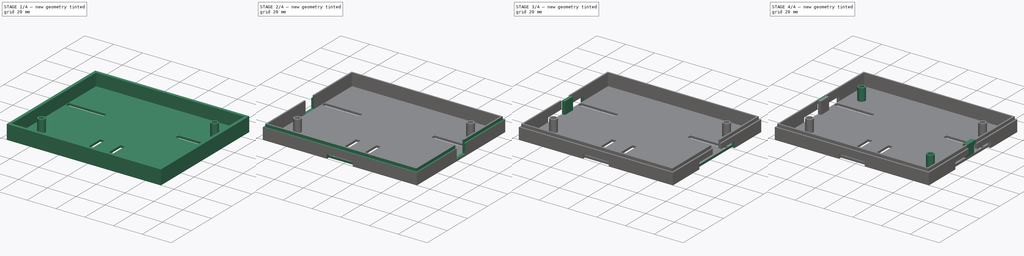
[diagram: build sequence overview — one tinted view per stage of 4, left to right]
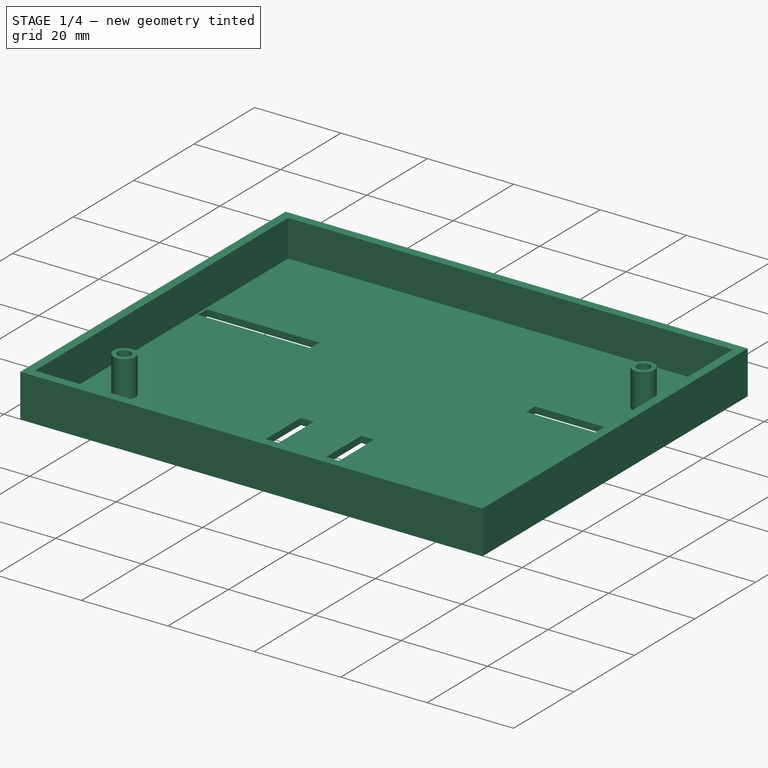
[diagram: stage 1 of 4 — iso view after this stage's code; geometry added in this stage tinted green]
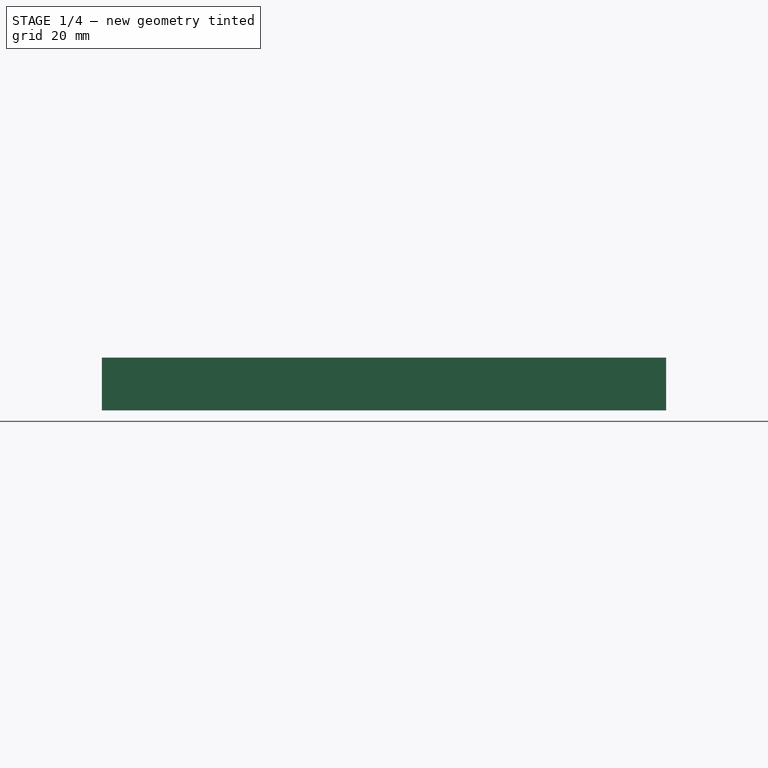
[diagram: stage 1 of 4 — front view after this stage's code; geometry added in this stage tinted green]
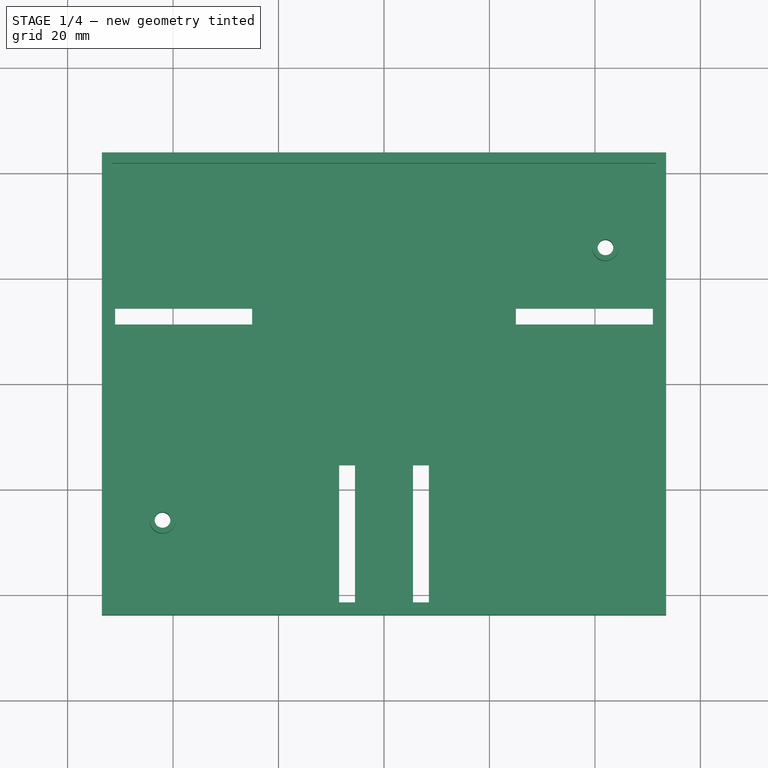
[diagram: stage 1 of 4 — top view after this stage's code; geometry added in this stage tinted green]
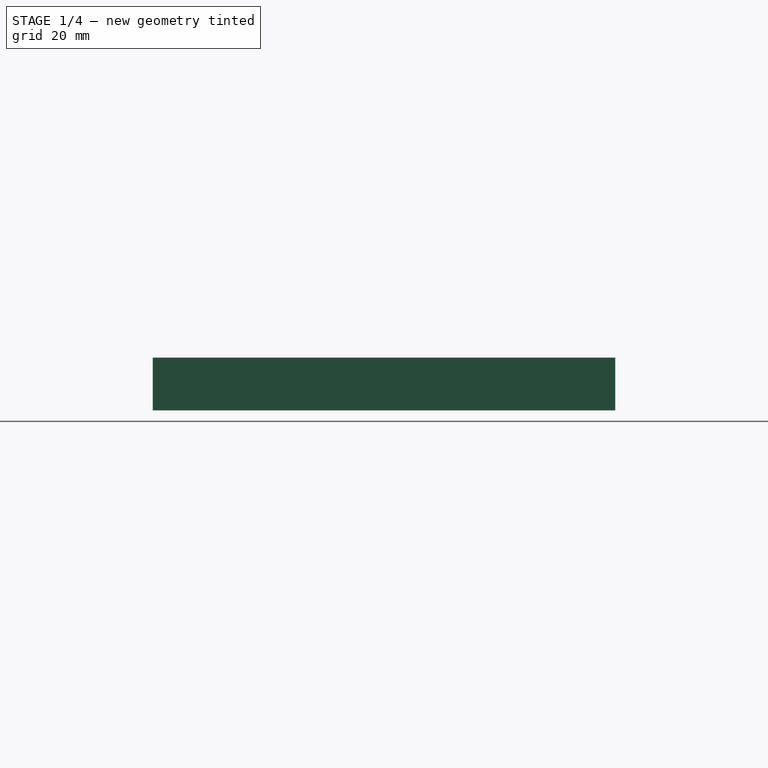
[diagram: stage 1 of 4 — right view after this stage's code; geometry added in this stage tinted green]
FCSTD DOCUMENT  (FreeCAD 1.0R39319 (Git))
Label: segunda parte
License: All rights reserved
LicenseURL: https://en.wikipedia.org/wiki/All_rights_reserved
objects: Sketcher::SketchObject×9, PartDesign::Pocket×6, PartDesign::Pad×3, PartDesign::Mirrored×1, PartDesign::Body×1
note: 48 computed .brp shape members not serialized (recipe doc carries the construction recipe); baked Part::Feature solids carry a one-line shape summary decoded from their .brp

FEATURE [Sketcher::SketchObject] Sketch
  ArcFitTolerance = 1e-06
  AttachmentSupport = -> [XY_Plane]
  FullyConstrained = false
  MakeInternals = false
  MapMode = 5
  sketch-geometry (23):
    g0: LineSegment StartX=-53.5 StartY=-43.85 StartZ=0 EndX=53.5 EndY=-43.85 EndZ=0
    g1: LineSegment StartX=53.5 StartY=-43.85 StartZ=0 EndX=53.5 EndY=43.85 EndZ=0
    g2: LineSegment StartX=53.5 StartY=43.85 StartZ=0 EndX=-53.5 EndY=43.85 EndZ=0
    g3: LineSegment StartX=-53.5 StartY=43.85 StartZ=0 EndX=-53.5 EndY=-43.85 EndZ=0
    g4: Circle CenterX=-42 CenterY=-25.85 CenterZ=0 NormalX=0 NormalY=0 NormalZ=1 AngleXU=0 Radius=1.5
    g5: Circle CenterX=42 CenterY=25.85 CenterZ=0 NormalX=0 NormalY=0 NormalZ=1 AngleXU=0 Radius=1.5
    g6: LineSegment [constr] StartX=2.9e-15 StartY=-43.85 StartZ=0 EndX=2.9e-15 EndY=-14.8013 EndZ=0
    g7: LineSegment StartX=-8.5 StartY=-15.35 StartZ=0 EndX=-8.5 EndY=-41.35 EndZ=0
    g8: LineSegment StartX=-8.5 StartY=-41.35 StartZ=0 EndX=-5.5 EndY=-41.35 EndZ=0
    g9: LineSegment StartX=-5.5 StartY=-41.35 StartZ=0 EndX=-5.5 EndY=-15.35 EndZ=0
    g10: LineSegment StartX=-5.5 StartY=-15.35 StartZ=0 EndX=-8.5 EndY=-15.35 EndZ=0
    g11: LineSegment StartX=5.5 StartY=-15.35 StartZ=0 EndX=5.5 EndY=-41.35 EndZ=0
    g12: LineSegment StartX=5.5 StartY=-41.35 StartZ=0 EndX=8.5 EndY=-41.35 EndZ=0
    g13: LineSegment StartX=8.5 StartY=-41.35 StartZ=0 EndX=8.5 EndY=-15.35 EndZ=0
    g14: LineSegment StartX=8.5 StartY=-15.35 StartZ=0 EndX=5.5 EndY=-15.35 EndZ=0
    g15: LineSegment StartX=51 StartY=14.35 StartZ=0 EndX=25 EndY=14.35 EndZ=0
    g16: LineSegment StartX=25 StartY=14.35 StartZ=0 EndX=25 EndY=11.35 EndZ=0
    g17: LineSegment StartX=25 StartY=11.35 StartZ=0 EndX=51 EndY=11.35 EndZ=0
    g18: LineSegment StartX=51 StartY=11.35 StartZ=0 EndX=51 EndY=14.35 EndZ=0
    g19: LineSegment StartX=-25 StartY=14.35 StartZ=0 EndX=-51 EndY=14.35 EndZ=0
    g20: LineSegment StartX=-51 StartY=14.35 StartZ=0 EndX=-51 EndY=11.35 EndZ=0
    g21: LineSegment StartX=-51 StartY=11.35 StartZ=0 EndX=-25 EndY=11.35 EndZ=0
    g22: LineSegment StartX=-25 StartY=11.35 StartZ=0 EndX=-25 EndY=14.35 EndZ=0
  constraints (66):
    c: Coincident(g0,g1)
    c: Coincident(g1,g2)
    c: Coincident(g2,g3)
    c: Coincident(g3,g0)
    c: Horizontal(g0)
    c: Horizontal(g2)
    c: Vertical(g1)
    c: Vertical(g3)
    c: DistanceX(g2,g2) = 107
    c: DistanceY(g3,g3) = 87.7
    c: Diameter(g4) = 3
    c: DistanceX(g0,g4) = 11.5
    c: DistanceY(g0,g4) = 18
    c: DistanceX(g5,g1) = 11.5
    c: DistanceY(g5,g1) = 18
    c: Diameter(g5) = 3
    c: Symmetric(g0,g0,g6)
    c: Vertical(g6)
    c: Coincident(g7,g8)
    c: Coincident(g8,g9)
    c: Coincident(g9,g10)
    c: Coincident(g10,g7)
    c: Vertical(g7)
    c: Vertical(g9)
    c: Horizontal(g8)
    c: Horizontal(g10)
    c: Coincident(g11,g12)
    c: Coincident(g12,g13)
    c: Coincident(g13,g14)
    c: Coincident(g14,g11)
    c: Vertical(g11)
    c: Vertical(g13)
    c: Horizontal(g12)
    c: Horizontal(g14)
    c: DistanceX(g10,g10) = 3
    c: DistanceX(g14,g14) = 3
    c: DistanceY(g13,g13) = 26
    c: DistanceY(g9,g9) = 26
    c: DistanceY(g0,g8) = 2.5
    c: DistanceY(g0,g12) = 2.5
    c: DistanceX(g12,g0) = 45
    c: DistanceX(g0,g7) = 45
    c: Coincident(g15,g16)
    c: Coincident(g16,g17)
    c: Coincident(g17,g18)
    c: Coincident(g18,g15)
    c: Horizontal(g15)
    c: Horizontal(g17)
    c: Vertical(g16)
    c: Vertical(g18)
    c: Coincident(g19,g20)
    c: Coincident(g20,g21)
    c: Coincident(g21,g22)
    c: Coincident(g22,g19)
    c: Horizontal(g19)
    c: Horizontal(g21)
    c: Vertical(g20)
    c: Vertical(g22)
    c: DistanceY(g18,g18) = 3
    c: DistanceY(g22,g22) = 3
    c: DistanceX(g17,g17) = 26
    c: DistanceX(g21,g21) = 26
    c: DistanceY(g15,g5) = 11.5
    c: DistanceY(g19,g5) = 11.5
    c: DistanceX(g15,g1) = 2.5
    c: DistanceX(g2,g19) = 2.5
FEATURE [PartDesign::Pad] Pad
  Direction = (0,0,1)
  Length = 10
  Length2 = 10
  Profile = -> Sketch
  ReferenceAxis = -> Sketch [N_Axis]
  Refine = true
  Suppressed = false
  Type = 0
FEATURE [Sketcher::SketchObject] Sketch001
  ArcFitTolerance = 1e-06
  AttachmentSupport = -> [Pad]
  FullyConstrained = true
  MakeInternals = false
  MapMode = 5
  Placement = pos=(0,0,10) rot=(0,0,1;0rad)
  sketch-geometry (6):
    g0: LineSegment StartX=-51.5 StartY=41.85 StartZ=0 EndX=-51.5 EndY=-41.85 EndZ=0
    g1: LineSegment StartX=-51.5 StartY=-41.85 StartZ=0 EndX=51.5 EndY=-41.85 EndZ=0
    g2: LineSegment StartX=51.5 StartY=-41.85 StartZ=0 EndX=51.5 EndY=41.85 EndZ=0
    g3: LineSegment StartX=51.5 StartY=41.85 StartZ=0 EndX=-51.5 EndY=41.85 EndZ=0
    g4: Circle CenterX=-42 CenterY=-25.85 CenterZ=0 NormalX=0 NormalY=0 NormalZ=1 AngleXU=0 Radius=2.5
    g5: Circle CenterX=42 CenterY=25.85 CenterZ=0 NormalX=0 NormalY=0 NormalZ=1 AngleXU=0 Radius=2.5
  constraints (18):
    c: Coincident(g0,g1)
    c: Coincident(g1,g2)
    c: Coincident(g2,g3)
    c: Coincident(g3,g0)
    c: Vertical(g0)
    c: Vertical(g2)
    c: Horizontal(g1)
    c: Horizontal(g3)
    c: DistanceX(g1,g1) = 103
    c: DistanceY(g0,g0) = 83.7
    c: DistanceY(g-1,g0) = 41.85
    c: DistanceX(g0,g-1) = 51.5
    c: Diameter(g4) = 5
    c: Diameter(g5) = 5
    c: DistanceX(g0,g4) = 9.5
    c: DistanceX(g5,g2) = 9.5
    c: DistanceY(g5,g2) = 16
    c: DistanceY(g0,g4) = 16
FEATURE [PartDesign::Pocket] Pocket
  BaseFeature = -> Pad
  Direction = (0,0,-1)
  Length = 8.5
  Length2 = 5
  Profile = -> Sketch001
  ReferenceAxis = -> Sketch001 [N_Axis]
  Refine = true
  Suppressed = false
  Type = 0
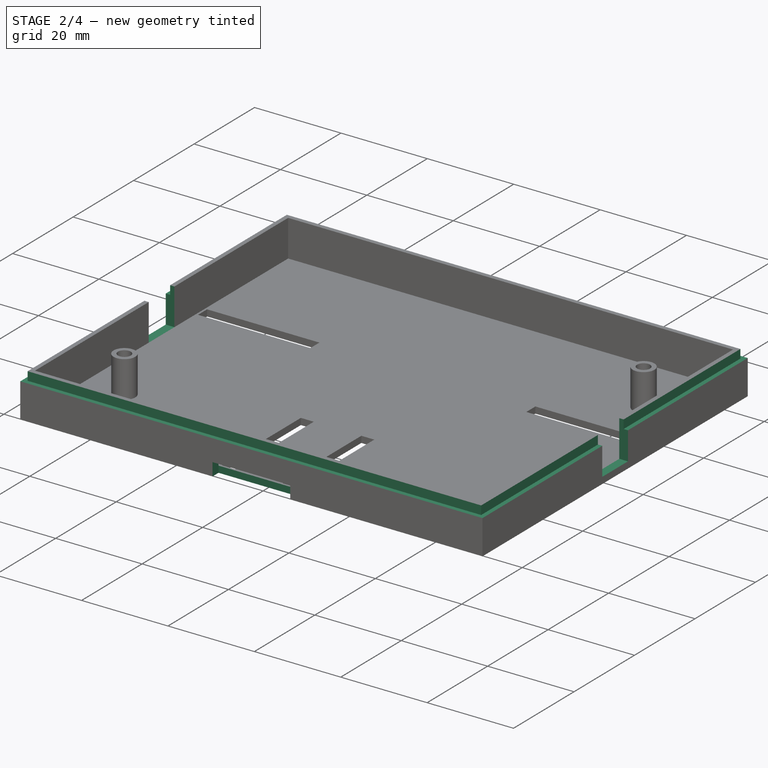
[diagram: stage 2 of 4 — iso view after this stage's code; geometry added in this stage tinted green]
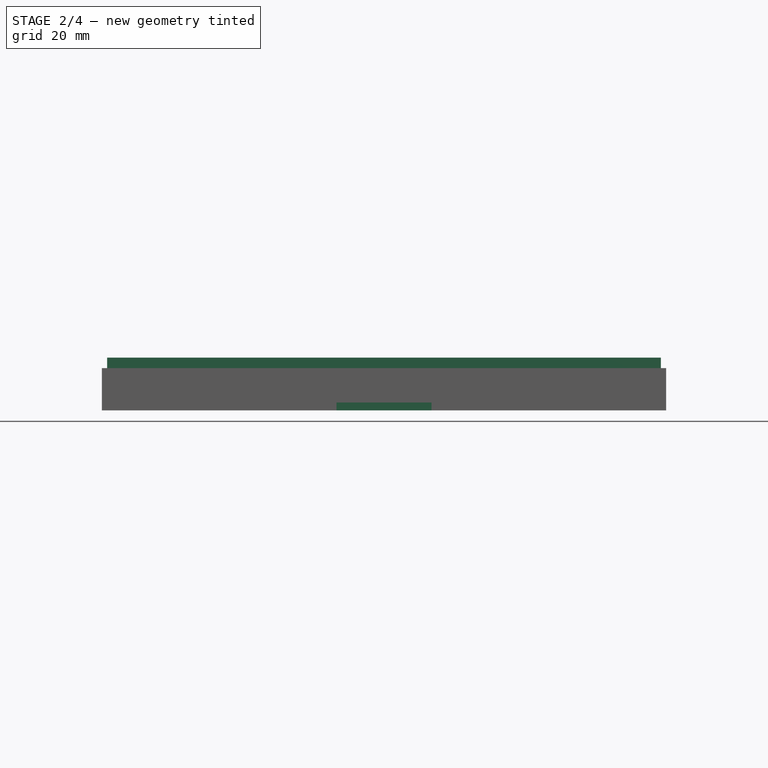
[diagram: stage 2 of 4 — front view after this stage's code; geometry added in this stage tinted green]
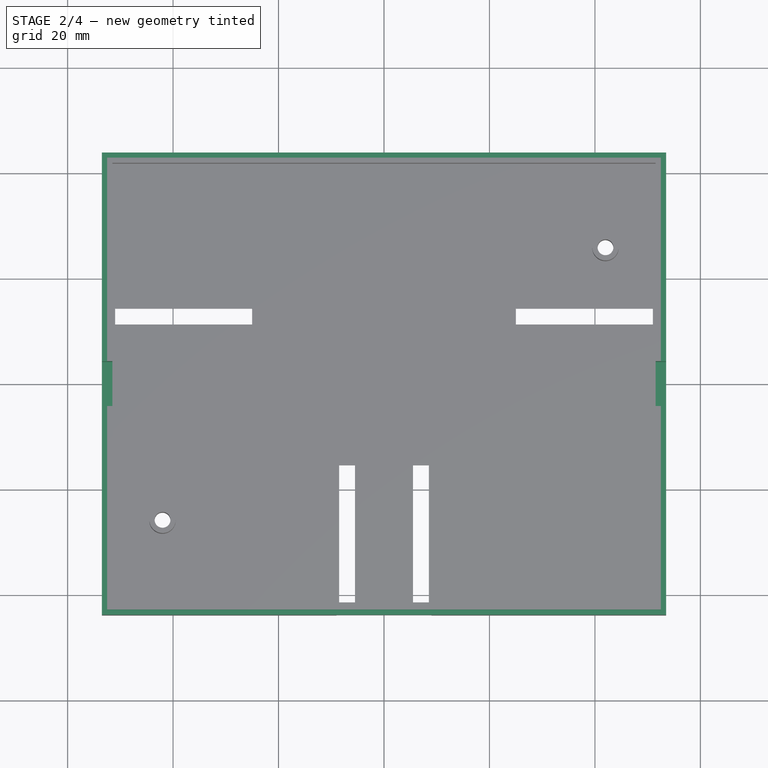
[diagram: stage 2 of 4 — top view after this stage's code; geometry added in this stage tinted green]
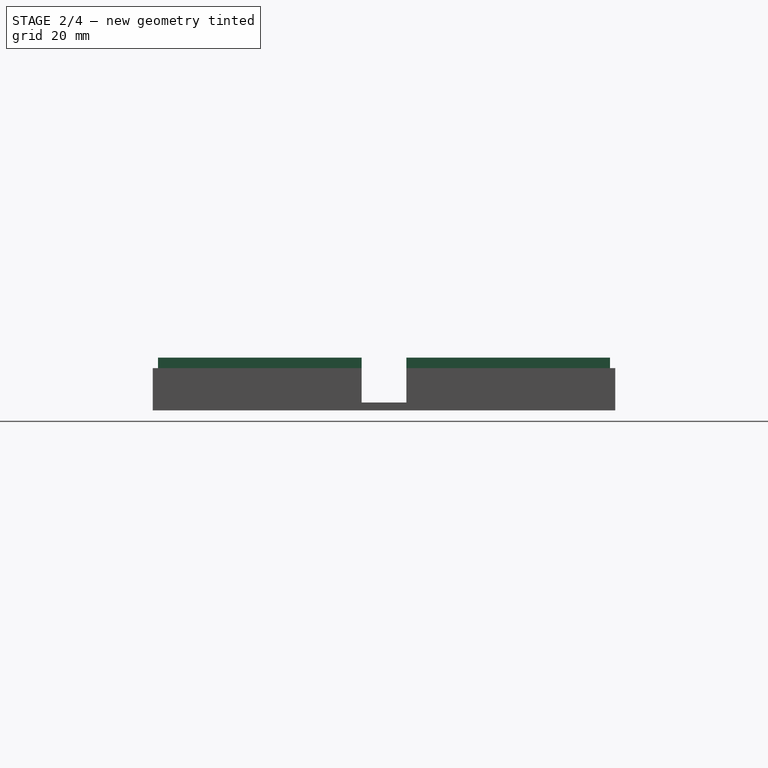
[diagram: stage 2 of 4 — right view after this stage's code; geometry added in this stage tinted green]
FEATURE [Sketcher::SketchObject] Sketch002
  ArcFitTolerance = 1e-06
  AttachmentSupport = -> [Pocket]
  FullyConstrained = false
  MakeInternals = false
  MapMode = 5
  Placement = pos=(0,0,10) rot=(0,0,1;0rad)
  sketch-geometry (8):
    g0: LineSegment StartX=-53.5 StartY=43.85 StartZ=0 EndX=-53.5 EndY=-43.85 EndZ=0
    g1: LineSegment StartX=-53.5 StartY=-43.85 StartZ=0 EndX=53.5 EndY=-43.85 EndZ=0
    g2: LineSegment StartX=53.5 StartY=-43.85 StartZ=0 EndX=53.5 EndY=43.85 EndZ=0
    g3: LineSegment StartX=53.5 StartY=43.85 StartZ=0 EndX=-53.5 EndY=43.85 EndZ=0
    g4: LineSegment StartX=-52.5 StartY=42.85 StartZ=0 EndX=-52.5 EndY=-42.85 EndZ=0
    g5: LineSegment StartX=-52.5 StartY=-42.85 StartZ=0 EndX=52.5 EndY=-42.85 EndZ=0
    g6: LineSegment StartX=52.5 StartY=-42.85 StartZ=0 EndX=52.5 EndY=42.85 EndZ=0
    g7: LineSegment StartX=52.5 StartY=42.85 StartZ=0 EndX=-52.5 EndY=42.85 EndZ=0
  constraints (20):
    c: Coincident(g0,g1)
    c: Coincident(g1,g2)
    c: Coincident(g2,g3)
    c: Coincident(g3,g0)
    c: Vertical(g0)
    c: Vertical(g2)
    c: Horizontal(g1)
    c: Horizontal(g3)
    c: Coincident(g4,g5)
    c: Coincident(g5,g6)
    c: Coincident(g6,g7)
    c: Coincident(g7,g4)
    c: Vertical(g4)
    c: Vertical(g6)
    c: Horizontal(g5)
    c: Horizontal(g7)
    c: DistanceX(g1,g1) = 107
    c: DistanceX(g5,g5) = 105
    c: DistanceY(g0,g0) = 87.7
    c: DistanceY(g4,g4) = 85.7
FEATURE [PartDesign::Pocket] Pocket001
  BaseFeature = -> Pocket
  Direction = (0,0,-1)
  Length = 2
  Length2 = 5
  Profile = -> Sketch002
  ReferenceAxis = -> Sketch002 [N_Axis]
  Refine = true
  Suppressed = false
  Type = 0
FEATURE [Sketcher::SketchObject] Sketch003
  ArcFitTolerance = 1e-06
  AttachmentSupport = -> [YZ_Plane]
  FullyConstrained = false
  MakeInternals = false
  MapMode = 5
  Placement = pos=(0,0,0) rot=(0.57735,0.57735,0.57735;2.0944rad)
  sketch-geometry (4):
    g0: LineSegment StartX=-4.25 StartY=10 StartZ=0 EndX=-4.25 EndY=1.5 EndZ=0
    g1: LineSegment StartX=-4.25 StartY=1.5 StartZ=0 EndX=4.25 EndY=1.5 EndZ=0
    g2: LineSegment StartX=4.25 StartY=1.5 StartZ=0 EndX=4.25 EndY=10 EndZ=0
    g3: LineSegment StartX=4.25 StartY=10 StartZ=0 EndX=-4.25 EndY=10 EndZ=0
  constraints (11):
    c: Coincident(g0,g1)
    c: Coincident(g1,g2)
    c: Coincident(g2,g3)
    c: Coincident(g3,g0)
    c: Vertical(g0)
    c: Vertical(g2)
    c: Horizontal(g1)
    c: Horizontal(g3)
    c: DistanceX(g3,g3) = 8.5
    c: DistanceY(g-1,g0) = 1.5
    c: DistanceY(g0,g0) = 8.5
FEATURE [PartDesign::Pocket] Pocket002
  BaseFeature = -> Pocket001
  Direction = (-1,0,0)
  Length = 5
  Length2 = 5
  Midplane = true
  Profile = -> Sketch003
  ReferenceAxis = -> Sketch003 [N_Axis]
  Refine = true
  Suppressed = false
  Type = 1
FEATURE [Sketcher::SketchObject] Sketch004
  ArcFitTolerance = 1e-06
  AttachmentSupport = -> [Pocket002]
  FullyConstrained = false
  MakeInternals = false
  MapMode = 5
  Placement = pos=(0,-43.85,0) rot=(1,0,0;1.5708rad)
  sketch-geometry (4):
    g0: LineSegment StartX=-9 StartY=3 StartZ=0 EndX=-9 EndY=0 EndZ=0
    g1: LineSegment StartX=-9 StartY=0 StartZ=0 EndX=9 EndY=0 EndZ=0
    g2: LineSegment StartX=9 StartY=0 StartZ=0 EndX=9 EndY=3 EndZ=0
    g3: LineSegment StartX=9 StartY=3 StartZ=0 EndX=-9 EndY=3 EndZ=0
  constraints (11):
    c: Coincident(g0,g1)
    c: Coincident(g1,g2)
    c: Coincident(g2,g3)
    c: Coincident(g3,g0)
    c: Vertical(g0)
    c: Vertical(g2)
    c: Horizontal(g1)
    c: Horizontal(g3)
    c: DistanceX(g1,g1) = 18
    c: DistanceY(g2,g2) = 3
    c: DistanceY(g-1,g1) = 0
FEATURE [PartDesign::Pocket] Pocket003
  BaseFeature = -> Pocket002
  Direction = (0,1,-2e-16)
  Length = 2
  Length2 = 5
  Profile = -> Sketch004
  ReferenceAxis = -> Sketch004 [N_Axis]
  Refine = true
  Suppressed = false
  Type = 0
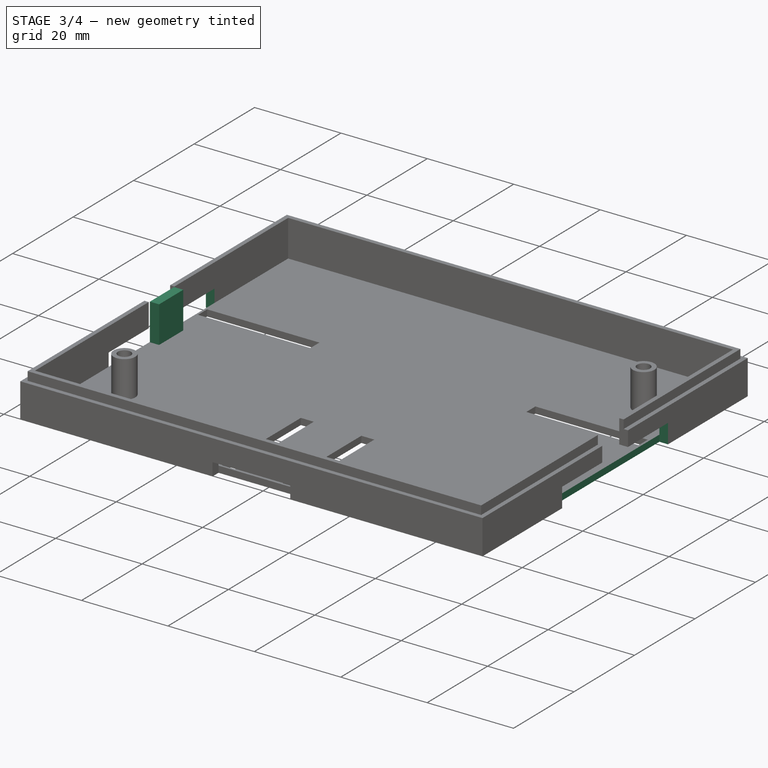
[diagram: stage 3 of 4 — iso view after this stage's code; geometry added in this stage tinted green]
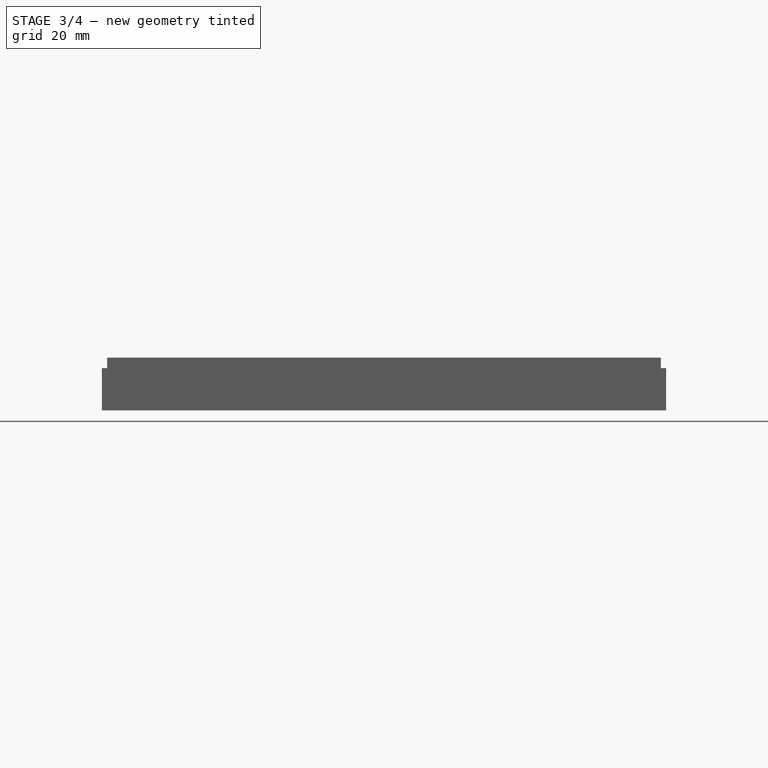
[diagram: stage 3 of 4 — front view after this stage's code; geometry added in this stage tinted green]
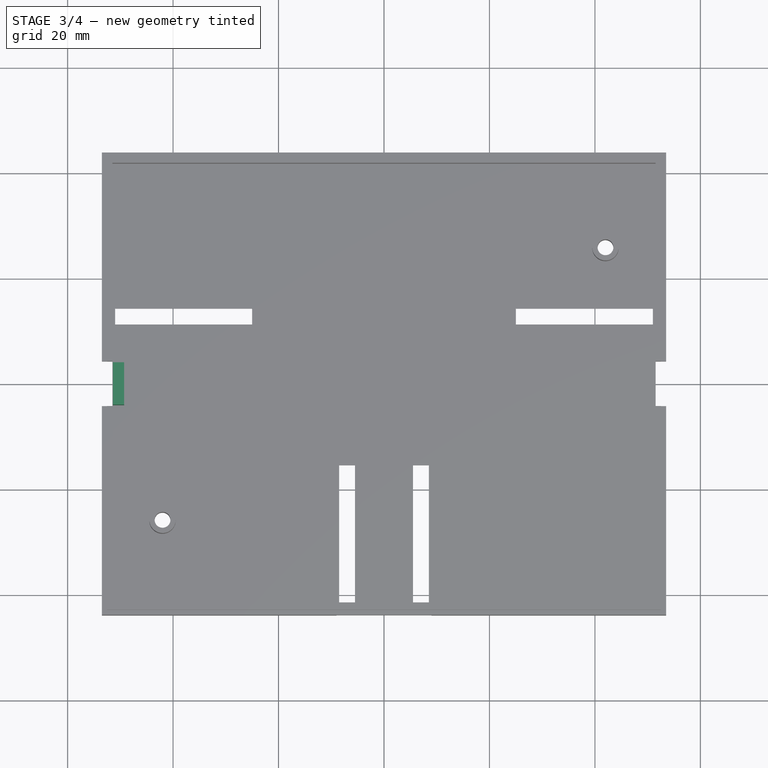
[diagram: stage 3 of 4 — top view after this stage's code; geometry added in this stage tinted green]
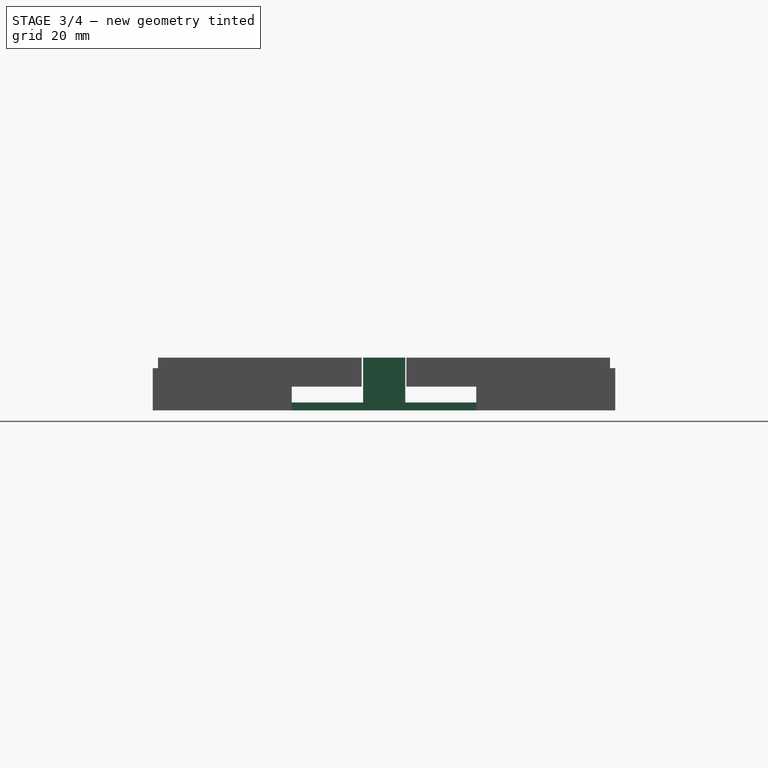
[diagram: stage 3 of 4 — right view after this stage's code; geometry added in this stage tinted green]
FEATURE [Sketcher::SketchObject] Sketch005
  ArcFitTolerance = 1e-06
  AttachmentSupport = -> [Pocket003]
  FullyConstrained = false
  MakeInternals = false
  MapMode = 5
  Placement = pos=(53.5,0,0) rot=(0.57735,0.57735,0.57735;2.0944rad)
  sketch-geometry (4):
    g0: LineSegment StartX=-17.5 StartY=4.5 StartZ=0 EndX=-17.5 EndY=0 EndZ=0
    g1: LineSegment StartX=-17.5 StartY=0 StartZ=0 EndX=17.5 EndY=0 EndZ=0
    g2: LineSegment StartX=17.5 StartY=0 StartZ=0 EndX=17.5 EndY=4.5 EndZ=0
    g3: LineSegment StartX=17.5 StartY=4.5 StartZ=0 EndX=-17.5 EndY=4.5 EndZ=0
  constraints (11):
    c: Coincident(g0,g1)
    c: Coincident(g1,g2)
    c: Coincident(g2,g3)
    c: Coincident(g3,g0)
    c: Vertical(g0)
    c: Vertical(g2)
    c: Horizontal(g1)
    c: Horizontal(g3)
    c: DistanceX(g1,g1) = 35
    c: DistanceY(g-1,g1) = 0
    c: DistanceY(g2,g2) = 4.5
FEATURE [PartDesign::Pocket] Pocket004
  BaseFeature = -> Pocket003
  Direction = (-1,0,0)
  Length = 2
  Length2 = 5
  Profile = -> Sketch005
  ReferenceAxis = -> Sketch005 [N_Axis]
  Refine = true
  Suppressed = false
  Type = 0
FEATURE [Sketcher::SketchObject] Sketch006
  ArcFitTolerance = 1e-06
  AttachmentSupport = -> [Pocket004]
  FullyConstrained = false
  MakeInternals = false
  MapMode = 5
  Placement = pos=(-53.5,0,0) rot=(0.57735,-0.57735,-0.57735;2.0944rad)
  sketch-geometry (4):
    g0: LineSegment StartX=-17.5 StartY=4.5 StartZ=0 EndX=-17.5 EndY=0 EndZ=0
    g1: LineSegment StartX=-17.5 StartY=0 StartZ=0 EndX=17.5 EndY=0 EndZ=0
    g2: LineSegment StartX=17.5 StartY=0 StartZ=0 EndX=17.5 EndY=4.5 EndZ=0
    g3: LineSegment StartX=17.5 StartY=4.5 StartZ=0 EndX=-17.5 EndY=4.5 EndZ=0
  constraints (11):
    c: Coincident(g0,g1)
    c: Coincident(g1,g2)
    c: Coincident(g2,g3)
    c: Coincident(g3,g0)
    c: Vertical(g0)
    c: Vertical(g2)
    c: Horizontal(g1)
    c: Horizontal(g3)
    c: DistanceX(g1,g1) = 35
    c: DistanceY(g-1,g1) = 0
    c: DistanceY(g2,g2) = 4.5
FEATURE [PartDesign::Pocket] Pocket005
  BaseFeature = -> Pocket004
  Direction = (1,0,0)
  Length = 2
  Length2 = 5
  Profile = -> Sketch006
  ReferenceAxis = -> Sketch006 [N_Axis]
  Refine = true
  Suppressed = false
  Type = 0
FEATURE [Sketcher::SketchObject] Sketch007
  ArcFitTolerance = 1e-06
  AttachmentSupport = -> [Pocket005]
  FullyConstrained = false
  MakeInternals = false
  MapMode = 5
  Placement = pos=(0,0,1.5) rot=(0,0,1;0rad)
  sketch-geometry (4):
    g0: LineSegment StartX=-51.4111 StartY=4.03061 StartZ=0 EndX=-51.4111 EndY=-3.96939 EndZ=0
    g1: LineSegment StartX=-51.4111 StartY=-3.96939 StartZ=0 EndX=-49.2907 EndY=-3.96939 EndZ=0
    g2: LineSegment StartX=-49.2907 StartY=-3.96939 StartZ=0 EndX=-49.2907 EndY=4.03061 EndZ=0
    g3: LineSegment StartX=-49.2907 StartY=4.03061 StartZ=0 EndX=-51.4111 EndY=4.03061 EndZ=0
  constraints (9):
    c: Coincident(g0,g1)
    c: Coincident(g1,g2)
    c: Coincident(g2,g3)
    c: Coincident(g3,g0)
    c: Vertical(g0)
    c: Vertical(g2)
    c: Horizontal(g1)
    c: Horizontal(g3)
    c: DistanceY(g0,g0) = 8
FEATURE [PartDesign::Pad] Pad001
  BaseFeature = -> Pocket005
  Direction = (0,0,1)
  Length = 8.5
  Length2 = 10
  Profile = -> Sketch007
  ReferenceAxis = -> Sketch007 [N_Axis]
  Refine = true
  Suppressed = false
  Type = 0
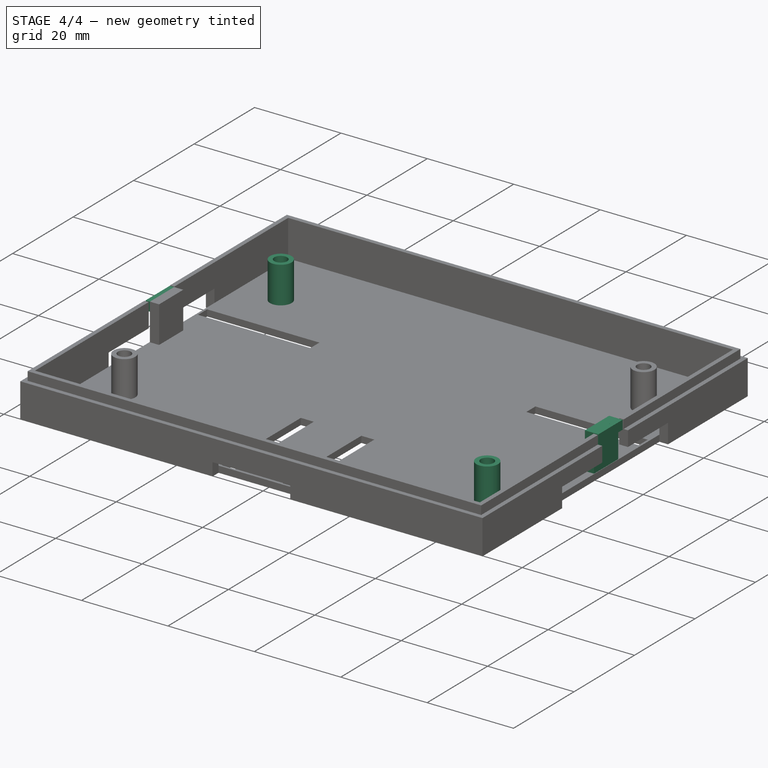
[diagram: stage 4 of 4 — iso view after this stage's code; geometry added in this stage tinted green]
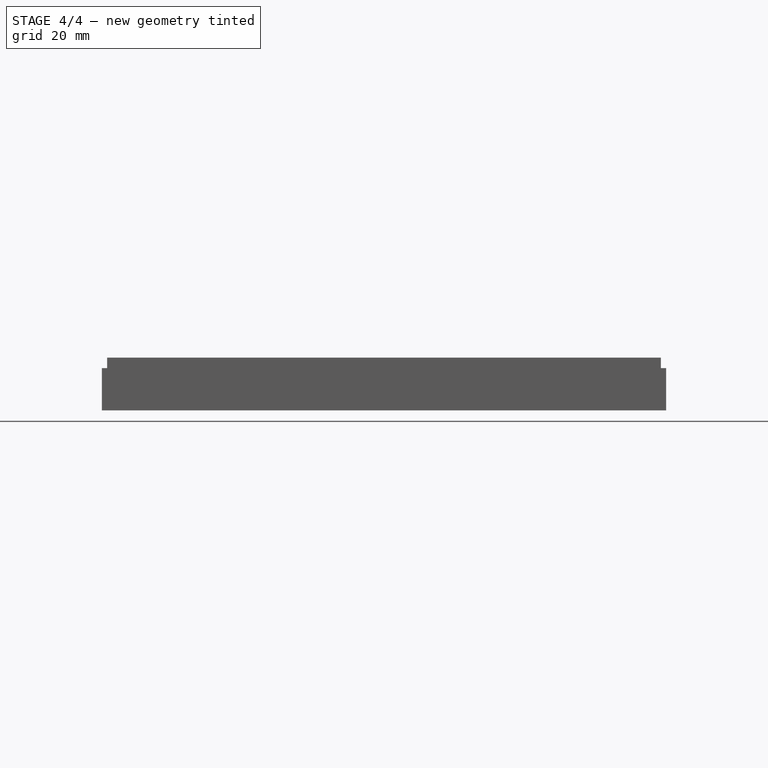
[diagram: stage 4 of 4 — front view after this stage's code; geometry added in this stage tinted green]
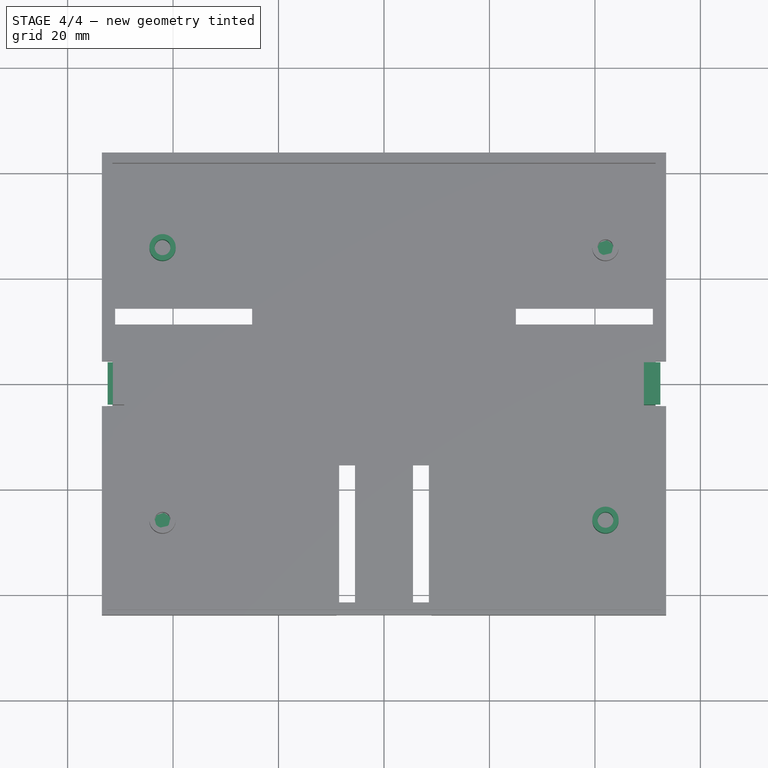
[diagram: stage 4 of 4 — top view after this stage's code; geometry added in this stage tinted green]
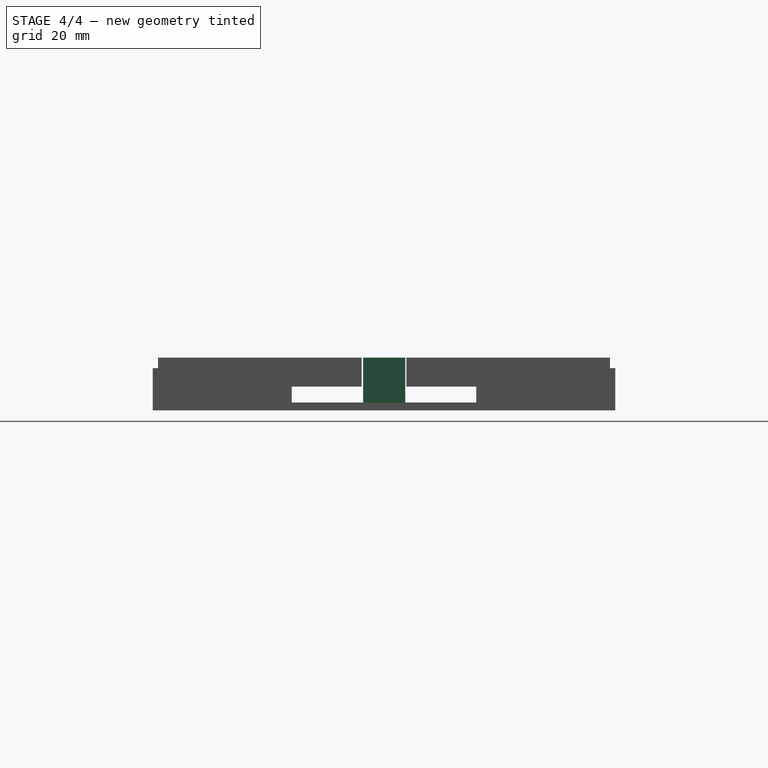
[diagram: stage 4 of 4 — right view after this stage's code; geometry added in this stage tinted green]
FEATURE [Sketcher::SketchObject] Sketch008
  ArcFitTolerance = 1e-06
  AttachmentSupport = -> [Pad001]
  FullyConstrained = false
  MakeInternals = false
  MapMode = 5
  Placement = pos=(-51.4111,0,0) rot=(0.57735,-0.57735,-0.57735;2.0944rad)
  sketch-geometry (4):
    g0: LineSegment StartX=-4.02869 StartY=9.99883 StartZ=0 EndX=-4.02869 EndY=7.90533 EndZ=0
    g1: LineSegment StartX=-4.02869 StartY=7.90533 StartZ=0 EndX=3.96855 EndY=7.90533 EndZ=0
    g2: LineSegment StartX=3.96855 StartY=7.90533 StartZ=0 EndX=3.96855 EndY=9.99883 EndZ=0
    g3: LineSegment StartX=3.96855 StartY=9.99883 StartZ=0 EndX=-4.02869 EndY=9.99883 EndZ=0
  constraints (8):
    c: Coincident(g0,g1)
    c: Coincident(g1,g2)
    c: Coincident(g2,g3)
    c: Coincident(g3,g0)
    c: Vertical(g0)
    c: Vertical(g2)
    c: Horizontal(g1)
    c: Horizontal(g3)
FEATURE [PartDesign::Pad] Pad002
  BaseFeature = -> Pad001
  Direction = (-1,0,0)
  Length = 1
  Length2 = 10
  Profile = -> Sketch008
  ReferenceAxis = -> Sketch008 [N_Axis]
  Refine = true
  Suppressed = false
  Type = 0
FEATURE [PartDesign::Mirrored] Mirrored
  BaseFeature = -> Pad002
  MirrorPlane = -> YZ_Plane
  Refine = true
  Suppressed = false
  TransformMode = 1
FEATURE [PartDesign::Body] Body
  AllowCompound = false
  Group = -> [Sketch,Pad,Sketch001,Pocket,Sketch002,Pocket001,Sketch003,Pocket002,Sketch004,Pocket003,Sketch005,Pocket004,Sketch006,Pocket005,Sketch007,Pad001,Sketch008,Pad002,Mirrored]
  Origin = -> Origin
  Tip = -> Mirrored
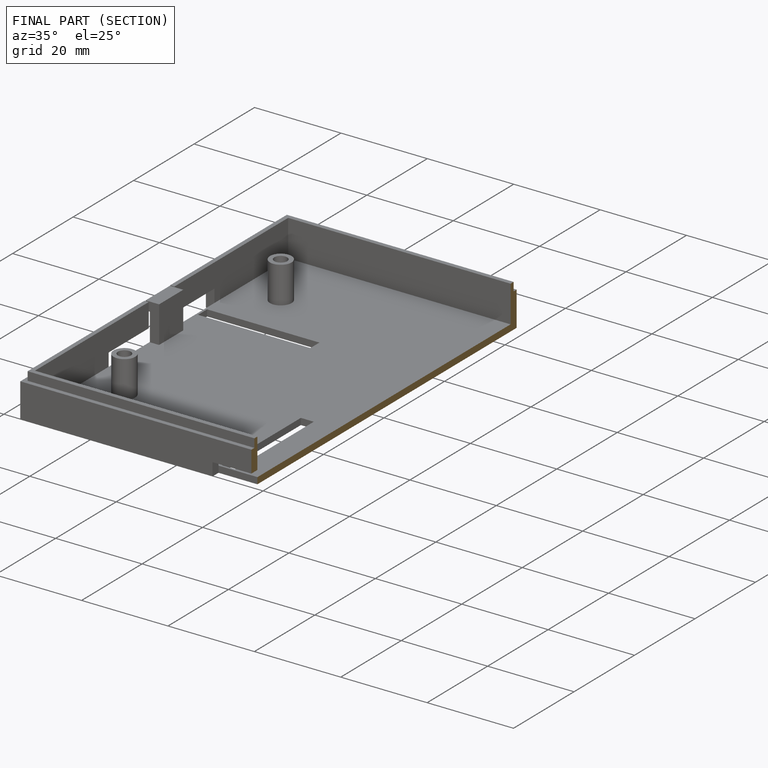
[diagram: finished part — half-section view (interior)]
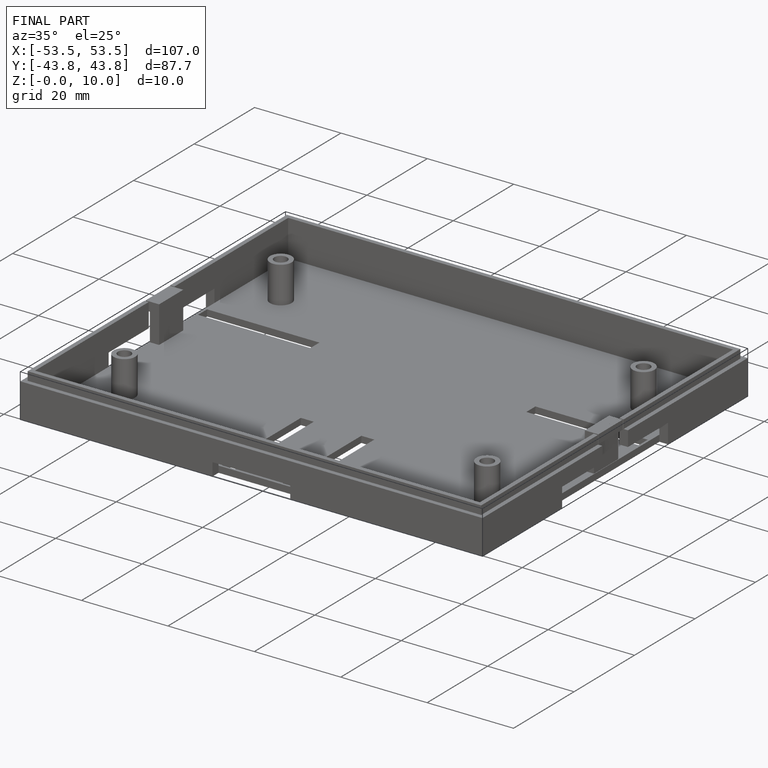
[diagram: finished part — iso view with bounding-box wireframe]
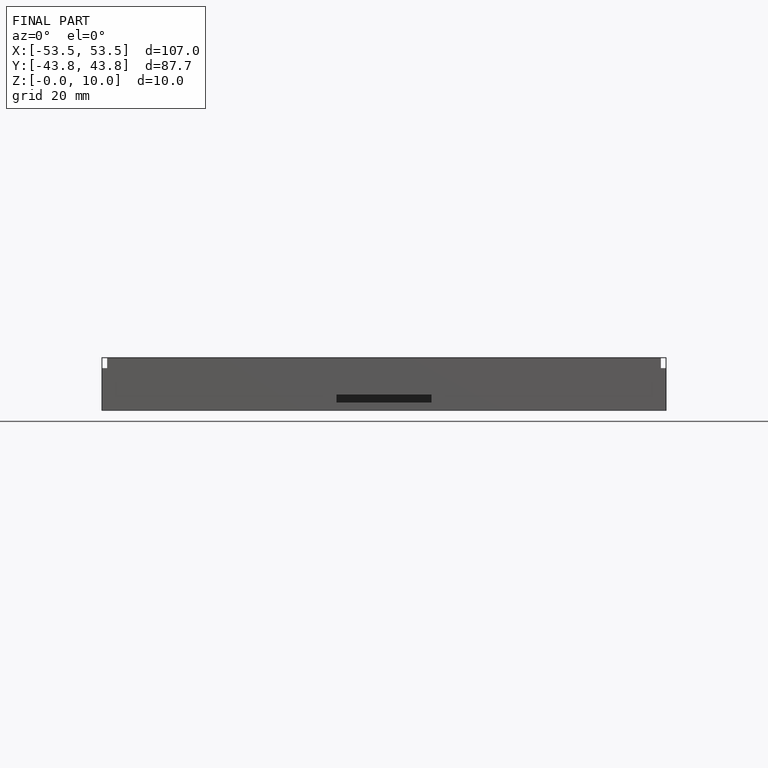
[diagram: finished part — front view with bounding-box wireframe]
